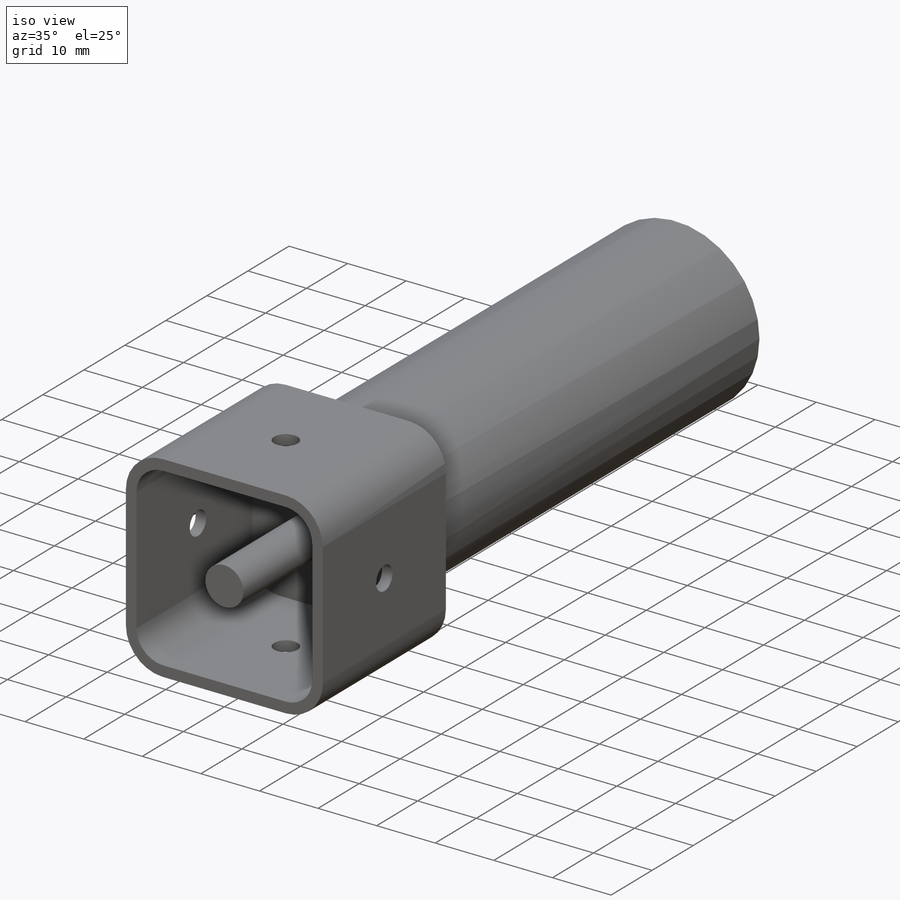
[diagram: iso view]
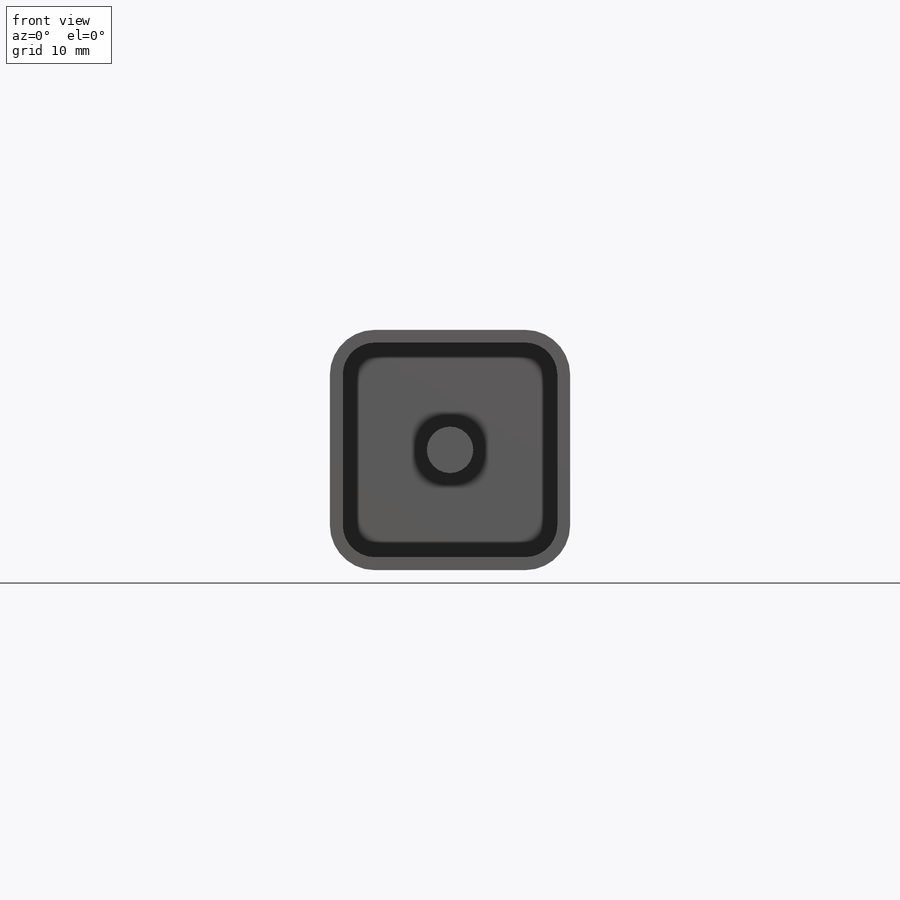
[diagram: front view]
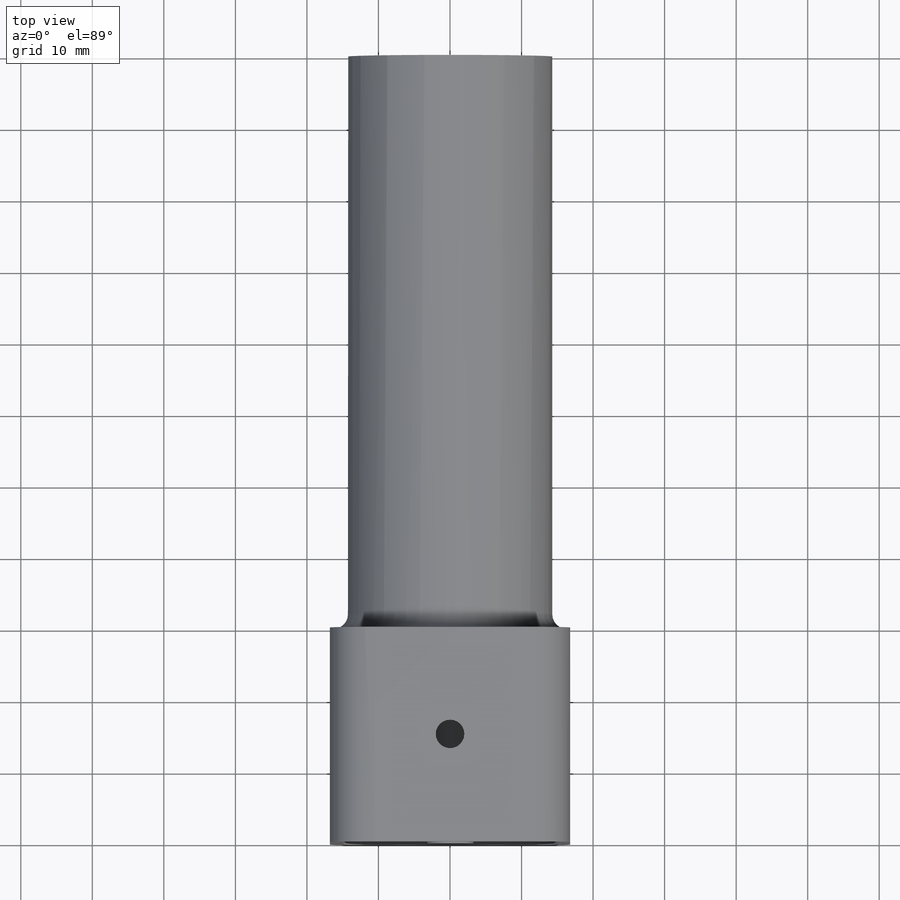
[diagram: top view]
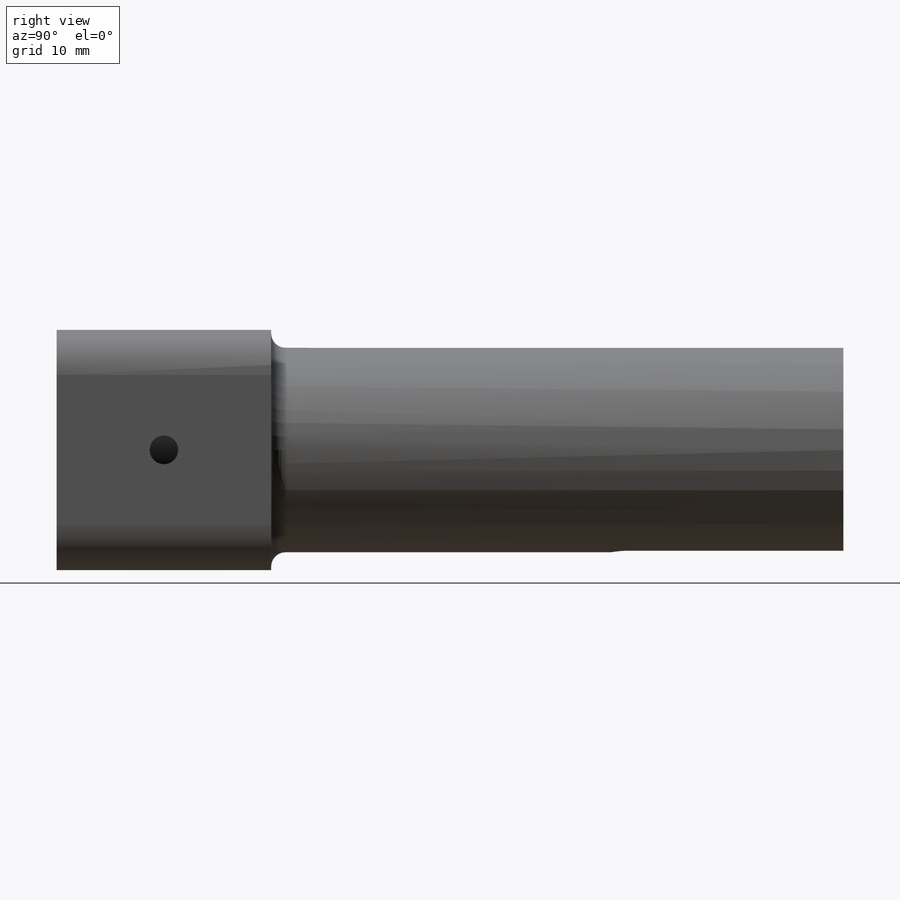
[diagram: right view]
SOLIDWORKS PART (.sldprt)
format: sldprt  version: not decoded by parser v0  size: 247,296 bytes
history: native  units: mm
features: sketch x5, plane x3, extrude x3, cut_extrude x2, material x1, shell x1, pattern_circular x1, fillet x1 (+10 scaffold rows collapsed)
feature tree (27):
  scaffold x10  (default folders/planes/origin — collapsed)
  material  "材質 <未指定>"
  plane  "前基準面"
  plane  "上基準面"
  plane  "右基準面"
  sketch  "草圖1"  dims[D4=6.5mm D5=4.5mm D6=6.3mm D1=30.0mm D2=30.0mm D3=1.8mm]
  extrude  "填料-伸長1"  Depth=30mm
  shell  "薄殼1"  Thickness=1.8mm
  extrude  "填料-伸長2"  [1 undecoded]
  sketch  "草圖1<3>"  dims[D1=30.0mm]
  sketch  "草圖2"  dims[D1=4.0mm]
  cut_extrude  "除料-伸長1"  [1 undecoded]
  pattern_circular  "環狀複製排列1"  Count=4 Angle=360deg
  sketch  "草圖3"  dims[D1=25.0mm D2=1.8mm]
  extrude  "填料-伸長3"  Depth=80mm
  sketch  "草圖4"  dims[D1=5.0mm D2=30.0mm]
  cut_extrude  "除料-伸長2"  [1 undecoded]
  fillet  "圓角1"  Radius=2mm
decode coverage: 10 of 13 modeling features carry decoded parameters
note: 3 parameter values undecoded
summary: no parameter record found for 3 features
note: suppression state not decoded; provenance and decode notes live in map.json
